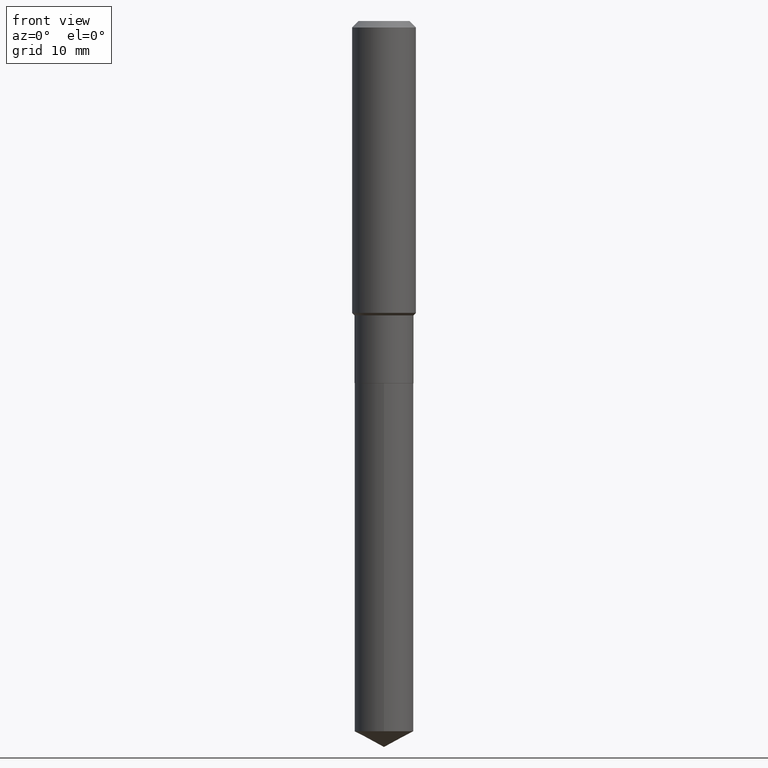
[diagram: clean part render]
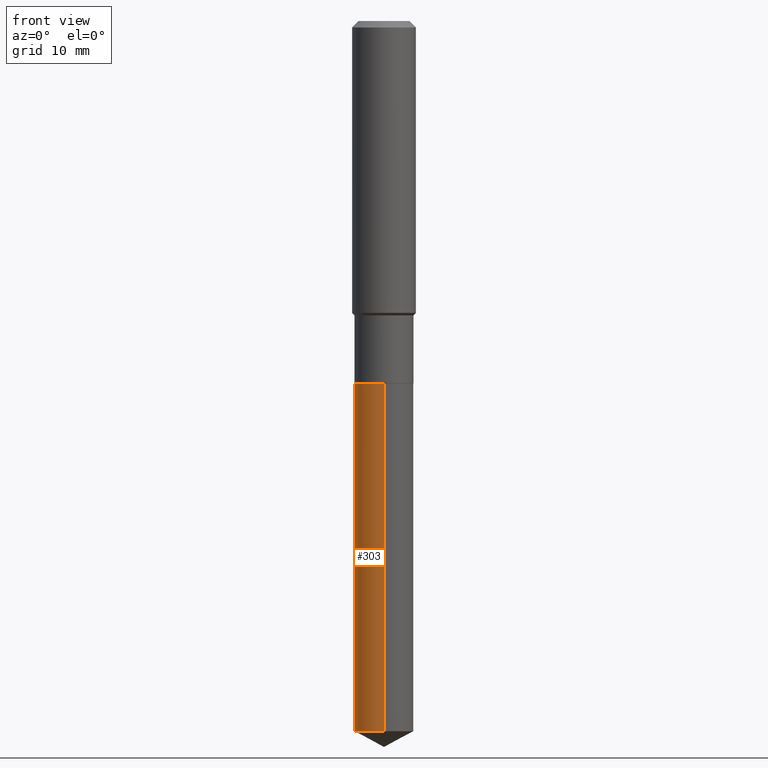
[diagram: same view with one face highlighted and labeled with its STEP entity id]
A machine part, front view. The second image highlights one B-rep face of the part: STEP entity #303.
In plain terms, the highlighted cylindrical surface (edge-blend (fillet) strip) has radius 3.6995 mm, axis along (-0, 0, 1).
Its self-contained STEP definition (entity closure, byte-faithful):
#8 = CYLINDRICAL_SURFACE ( 'NONE', #389, 0.1456500000000000017 ) ;
#34 = EDGE_LOOP ( 'NONE', ( #264, #70, #257, #406 ) ) ;
#46 = CARTESIAN_POINT ( 'NONE',  ( 8.571937176658098005E-29, -1.223862122627008641E-14, -3.505256521278505843 ) ) ;
#67 = DIRECTION ( 'NONE',  ( -2.445434866327650080E-29, 3.491529942650802761E-15, 1.000000000000000000 ) ) ;
#70 = ORIENTED_EDGE ( 'NONE', *, *, #327, .T. ) ;
#99 = CARTESIAN_POINT ( 'NONE',  ( 1.034905494634629320E-15, 0.1456499999999937289, -1.787400000000000988 ) ) ;
#108 = LINE ( 'NONE', #393, #336 ) ;
#112 = DIRECTION ( 'NONE',  ( -2.445434866327650080E-29, 3.491529942650802761E-15, 1.000000000000000000 ) ) ;
#135 = DIRECTION ( 'NONE',  ( -2.445434866327650080E-29, 3.491529942650802761E-15, 1.000000000000000000 ) ) ;
#157 = VERTEX_POINT ( 'NONE', #289 ) ;
#160 = AXIS2_PLACEMENT_3D ( 'NONE', #46, #339, #275 ) ;
#197 = EDGE_CURVE ( 'NONE', #481, #293, #294, .T. ) ;
#237 = DIRECTION ( 'NONE',  ( -6.982962677686265922E-15, -1.000000000000000000, 3.751250248766581581E-15 ) ) ;
#243 = DIRECTION ( 'NONE',  ( -2.445434866327650080E-29, 3.491529942650802761E-15, 1.000000000000000000 ) ) ;
#246 = EDGE_CURVE ( 'NONE', #157, #293, #108, .T. ) ;
#257 = ORIENTED_EDGE ( 'NONE', *, *, #246, .T. ) ;
#264 = ORIENTED_EDGE ( 'NONE', *, *, #449, .F. ) ;
#275 = DIRECTION ( 'NONE',  ( -6.982962677686265922E-15, -1.000000000000000000, 3.751250248766581581E-15 ) ) ;
#289 = CARTESIAN_POINT ( 'NONE',  ( -1.017068514004918675E-15, -0.1456500000000122419, -3.505256521278504955 ) ) ;
#293 = VERTEX_POINT ( 'NONE', #333 ) ;
#294 = CIRCLE ( 'NONE', #412, 0.1456500000000000017 ) ;
#303 = ADVANCED_FACE ( 'NONE', ( #374 ), #8, .T. ) ;
#327 = EDGE_CURVE ( 'NONE', #462, #157, #332, .T. ) ;
#332 = CIRCLE ( 'NONE', #160, 0.1456500000000000017 ) ;
#333 = CARTESIAN_POINT ( 'NONE',  ( -1.017068514004961077E-15, -0.1456500000000062467, -1.787399999999999878 ) ) ;
#336 = VECTOR ( 'NONE', #112, 39.37007874015748143 ) ;
#339 = DIRECTION ( 'NONE',  ( -2.445434866327650080E-29, 3.491529942650802761E-15, 1.000000000000000000 ) ) ;
#374 = FACE_OUTER_BOUND ( 'NONE', #34, .T. ) ;
#389 = AXIS2_PLACEMENT_3D ( 'NONE', #458, #243, #237 ) ;
#393 = CARTESIAN_POINT ( 'NONE',  ( -1.017068514004960879E-15, -0.1456500000000062467, -1.787399999999999878 ) ) ;
#404 = DIRECTION ( 'NONE',  ( -6.982962677686265922E-15, -1.000000000000000000, 3.751250248766581581E-15 ) ) ;
#406 = ORIENTED_EDGE ( 'NONE', *, *, #197, .F. ) ;
#408 = CARTESIAN_POINT ( 'NONE',  ( 1.034905494634671721E-15, 0.1456499999999937289, -1.787400000000000988 ) ) ;
#412 = AXIS2_PLACEMENT_3D ( 'NONE', #482, #67, #404 ) ;
#413 = VECTOR ( 'NONE', #135, 39.37007874015748143 ) ;
#449 = EDGE_CURVE ( 'NONE', #462, #481, #463, .T. ) ;
#458 = CARTESIAN_POINT ( 'NONE',  ( 4.371030944175314676E-29, -6.240673745048239449E-15, -1.787400000000000544 ) ) ;
#462 = VERTEX_POINT ( 'NONE', #472 ) ;
#463 = LINE ( 'NONE', #99, #413 ) ;
#472 = CARTESIAN_POINT ( 'NONE',  ( 1.034905494634671524E-15, 0.1456499999999877337, -3.505256521278506288 ) ) ;
#481 = VERTEX_POINT ( 'NONE', #408 ) ;
#482 = CARTESIAN_POINT ( 'NONE',  ( 4.371030944175314676E-29, -6.240673745048239449E-15, -1.787400000000000544 ) ) ;